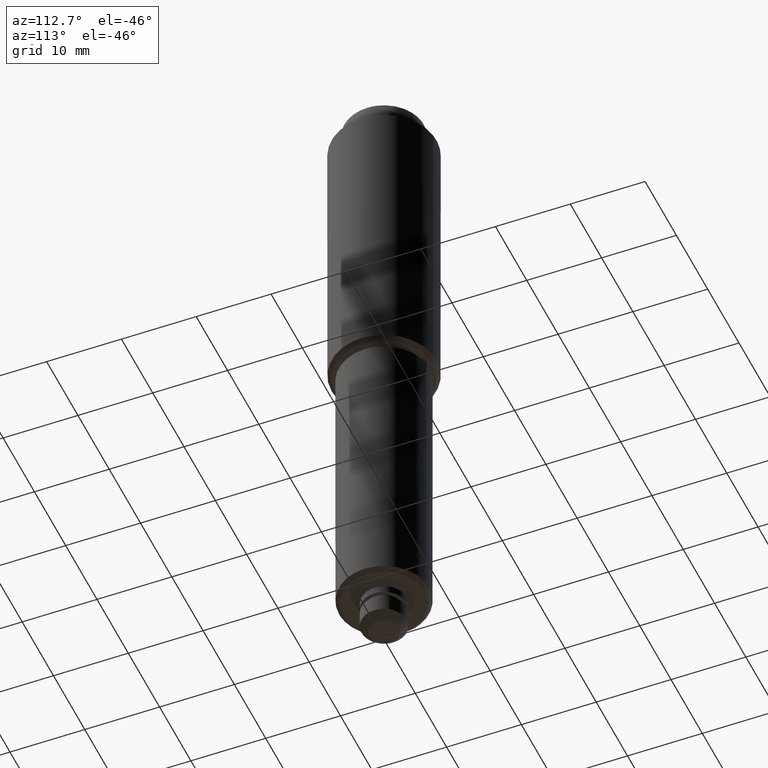
[diagram: clean part render]
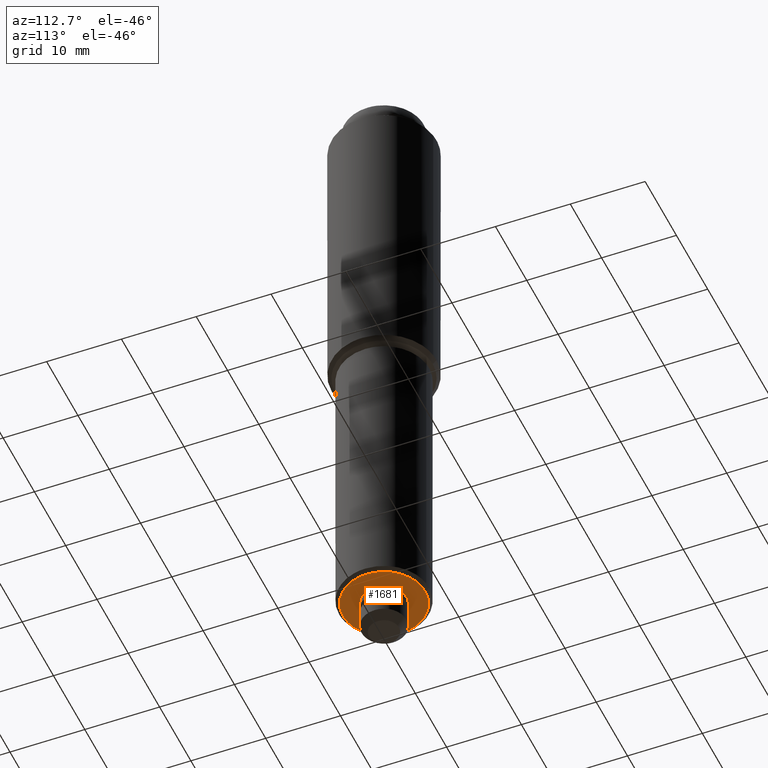
[diagram: same view with one face highlighted and labeled with its STEP entity id]
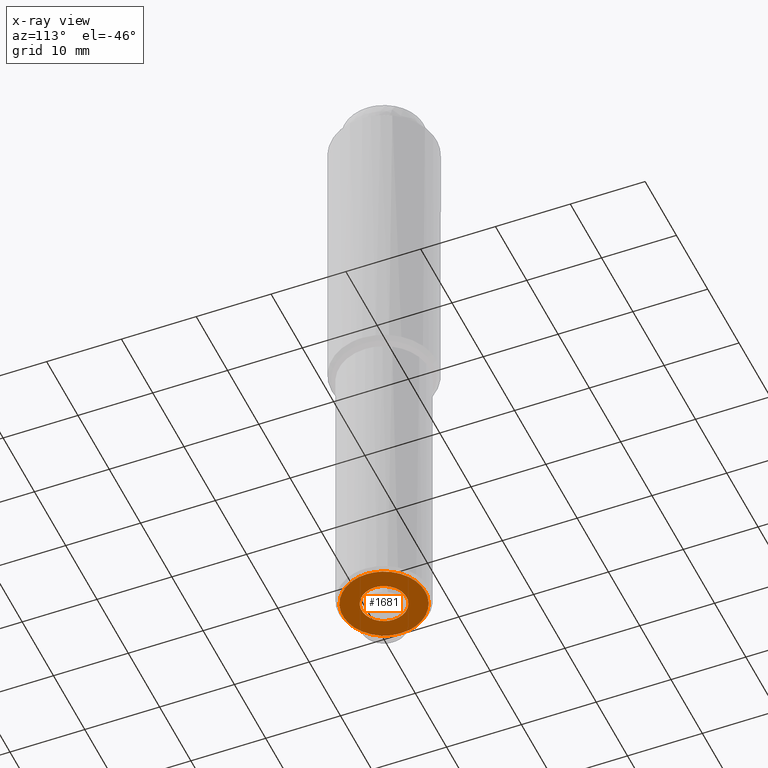
[diagram: x-ray of the same camera — body ghosted, the highlighted face saturated]
A machine part, auxiliary view. The second image highlights one B-rep face of the part: STEP entity #1681.
The next image is the same camera in x-ray: the body ghosted, the highlighted face saturated — about 0% of this face is hidden behind the body in this view.
In plain terms, the highlighted face is a freeform B-spline surface patch.
Its self-contained STEP definition (entity closure, byte-faithful):
#1236=CARTESIAN_POINT('',(-5.358199842454607,1.240844248333558,5.000000000027550));
#1237=VERTEX_POINT('',#1236);
#1243=CARTESIAN_POINT('',(-5.500000000000000,0.0,5.0));
#1244=VERTEX_POINT('',#1243);
#1245=CARTESIAN_POINT('',(-5.500000000000000,0.0,5.0));
#1246=CARTESIAN_POINT('',(-5.499999999999999,0.628524383983232,4.999999999999999));
#1247=CARTESIAN_POINT('',(-5.358199842454607,1.240844248333558,5.000000000027550));
#1255=(BOUNDED_CURVE()B_SPLINE_CURVE(2,(#1245,#1246,#1247),.UNSPECIFIED.,.F.,.U.)B_SPLINE_CURVE_WITH_KNOTS((3,3),(0.500000000000000,0.538577028229729),.UNSPECIFIED.)CURVE()GEOMETRIC_REPRESENTATION_ITEM()RATIONAL_B_SPLINE_CURVE((1.0,0.954804200118149,0.923556557419556))REPRESENTATION_ITEM(''));
#1256=EDGE_CURVE('',#1244,#1237,#1255,.T.);
#1258=CARTESIAN_POINT('',(5.500000000000000,0.0,5.0));
#1259=VERTEX_POINT('',#1258);
#1260=CARTESIAN_POINT('',(5.500000000000000,0.0,5.0));
#1261=CARTESIAN_POINT('',(5.500000000000001,-5.500000000000001,5.000000000000001));
#1262=CARTESIAN_POINT('',(0.0,-5.500000000000000,5.0));
#1263=CARTESIAN_POINT('',(-5.500000000000001,-5.500000000000001,5.000000000000001));
#1264=CARTESIAN_POINT('',(-5.500000000000000,0.0,5.0));
#1272=(BOUNDED_CURVE()B_SPLINE_CURVE(2,(#1260,#1261,#1262,#1263,#1264),.UNSPECIFIED.,.F.,.U.)B_SPLINE_CURVE_WITH_KNOTS((3,2,3),(0.0,0.250000000000000,0.500000000000000),.UNSPECIFIED.)CURVE()GEOMETRIC_REPRESENTATION_ITEM()RATIONAL_B_SPLINE_CURVE((1.0,0.707106781186548,1.0,0.707106781186548,1.0))REPRESENTATION_ITEM(''));
#1273=EDGE_CURVE('',#1259,#1244,#1272,.T.);
#1275=CARTESIAN_POINT('',(-0.047995945691069,5.499790576910344,5.000000000061327));
#1276=VERTEX_POINT('',#1275);
#1277=CARTESIAN_POINT('',(-0.047995945691069,5.499790576910344,5.000000000061327));
#1278=CARTESIAN_POINT('',(-0.023998429963362,5.499999999999999,5.0));
#1279=CARTESIAN_POINT('',(0.0,5.500000000000000,5.0));
#1280=CARTESIAN_POINT('',(5.500000000000001,5.500000000000001,5.000000000000001));
#1281=CARTESIAN_POINT('',(5.500000000000000,0.0,5.0));
#1289=(BOUNDED_CURVE()B_SPLINE_CURVE(2,(#1277,#1278,#1279,#1280,#1281),.UNSPECIFIED.,.F.,.U.)B_SPLINE_CURVE_WITH_KNOTS((3,2,3),(0.748460105636222,0.750000000000000,1.0),.UNSPECIFIED.)CURVE()GEOMETRIC_REPRESENTATION_ITEM()RATIONAL_B_SPLINE_CURVE((0.996414028033775,0.998195901532641,1.0,0.707106781186548,1.0))REPRESENTATION_ITEM(''));
#1290=EDGE_CURVE('',#1276,#1259,#1289,.T.);
#1392=CARTESIAN_POINT('',(-5.358199842454607,1.240844248333558,5.000000000027550));
#1393=CARTESIAN_POINT('',(-4.380675301435507,5.461979856223417,4.999999999999999));
#1394=CARTESIAN_POINT('',(-0.047995945691069,5.499790576910344,5.000000000061327));
#1402=(BOUNDED_CURVE()B_SPLINE_CURVE(2,(#1392,#1393,#1394),.UNSPECIFIED.,.F.,.U.)B_SPLINE_CURVE_WITH_KNOTS((3,3),(0.538577028229729,0.748460105636221),.UNSPECIFIED.)CURVE()GEOMETRIC_REPRESENTATION_ITEM()RATIONAL_B_SPLINE_CURVE((0.923556557419557,0.753549905475722,0.996414028033773))REPRESENTATION_ITEM(''));
#1403=EDGE_CURVE('',#1237,#1276,#1402,.T.);
#1500=CARTESIAN_POINT('',(0.354102703992168,-2.979028579088397,5.0));
#1501=VERTEX_POINT('',#1500);
#1502=CARTESIAN_POINT('',(-3.0,0.0,5.0));
#1503=VERTEX_POINT('',#1502);
#1504=CARTESIAN_POINT('',(0.354102703992168,-2.979028579088397,5.0));
#1505=CARTESIAN_POINT('',(0.177672358977854,-3.0,5.0));
#1506=CARTESIAN_POINT('',(0.0,-3.0,5.0));
#1507=CARTESIAN_POINT('',(-3.0,-3.0,5.000000000000001));
#1508=CARTESIAN_POINT('',(-3.0,0.0,5.0));
#1516=(BOUNDED_CURVE()B_SPLINE_CURVE(2,(#1504,#1505,#1506,#1507,#1508),.UNSPECIFIED.,.F.,.U.)B_SPLINE_CURVE_WITH_KNOTS((3,2,3),(0.229562473513160,0.250000000000000,0.500000000000000),.UNSPECIFIED.)CURVE()GEOMETRIC_REPRESENTATION_ITEM()RATIONAL_B_SPLINE_CURVE((0.956026754183017,0.976055948330737,1.0,0.707106781186548,1.0))REPRESENTATION_ITEM(''));
#1517=EDGE_CURVE('',#1501,#1503,#1516,.T.);
#1519=CARTESIAN_POINT('',(-0.183145618696712,2.994404395259965,5.0));
#1520=VERTEX_POINT('',#1519);
#1521=CARTESIAN_POINT('',(-3.0,0.0,5.0));
#1522=CARTESIAN_POINT('',(-3.000000000000001,2.822118200543074,4.999999999999999));
#1523=CARTESIAN_POINT('',(-0.183145618696712,2.994404395259965,5.0));
#1531=(BOUNDED_CURVE()B_SPLINE_CURVE(2,(#1521,#1522,#1523),.UNSPECIFIED.,.F.,.U.)B_SPLINE_CURVE_WITH_KNOTS((3,3),(0.500000000000000,0.739332962231349),.UNSPECIFIED.)CURVE()GEOMETRIC_REPRESENTATION_ITEM()RATIONAL_B_SPLINE_CURVE((1.0,0.719603993295607,0.976072041650442))REPRESENTATION_ITEM(''));
#1532=EDGE_CURVE('',#1503,#1520,#1531,.T.);
#1599=CARTESIAN_POINT('',(3.0,0.0,5.0));
#1600=VERTEX_POINT('',#1599);
#1601=CARTESIAN_POINT('',(3.0,0.0,5.0));
#1602=CARTESIAN_POINT('',(3.000000000000000,-2.664523577814664,5.0));
#1603=CARTESIAN_POINT('',(0.354102703992168,-2.979028579088397,5.0));
#1611=(BOUNDED_CURVE()B_SPLINE_CURVE(2,(#1601,#1602,#1603),.UNSPECIFIED.,.F.,.U.)B_SPLINE_CURVE_WITH_KNOTS((3,3),(0.0,0.229562473513160),.UNSPECIFIED.)CURVE()GEOMETRIC_REPRESENTATION_ITEM()RATIONAL_B_SPLINE_CURVE((1.0,0.731050832855810,0.956026754183017))REPRESENTATION_ITEM(''));
#1612=EDGE_CURVE('',#1600,#1501,#1611,.T.);
#1646=CARTESIAN_POINT('',(-0.183145618696712,2.994404395259965,5.0));
#1647=CARTESIAN_POINT('',(-0.091658289988166,3.0,5.0));
#1648=CARTESIAN_POINT('',(0.0,3.0,5.0));
#1649=CARTESIAN_POINT('',(3.0,3.0,5.000000000000001));
#1650=CARTESIAN_POINT('',(3.0,0.0,5.0));
#1658=(BOUNDED_CURVE()B_SPLINE_CURVE(2,(#1646,#1647,#1648,#1649,#1650),.UNSPECIFIED.,.F.,.U.)B_SPLINE_CURVE_WITH_KNOTS((3,2,3),(0.739332962231349,0.750000000000000,1.0),.UNSPECIFIED.)CURVE()GEOMETRIC_REPRESENTATION_ITEM()RATIONAL_B_SPLINE_CURVE((0.976072041650443,0.987502787890941,1.0,0.707106781186548,1.0))REPRESENTATION_ITEM(''));
#1659=EDGE_CURVE('',#1520,#1600,#1658,.T.);
#1664=CARTESIAN_POINT('',(-6.049449978679865,-6.049439524952551,5.0));
#1665=CARTESIAN_POINT('',(6.049450273722857,-6.049439524952551,5.0));
#1666=CARTESIAN_POINT('',(-6.049449978679865,6.049230536166806,5.0));
#1667=CARTESIAN_POINT('',(6.049450273722857,6.049230536166806,5.0));
#1668=B_SPLINE_SURFACE_WITH_KNOTS('',1,1,((#1664,#1666),(#1665,#1667)),.UNSPECIFIED.,.F.,.F.,.U.,(2,2),(2,2),(0.0,12.098900252402720),(0.0,12.098670061119360),.UNSPECIFIED.);
#1669=ORIENTED_EDGE('',*,*,#1273,.T.);
#1670=ORIENTED_EDGE('',*,*,#1256,.T.);
#1671=ORIENTED_EDGE('',*,*,#1403,.T.);
#1672=ORIENTED_EDGE('',*,*,#1290,.T.);
#1673=EDGE_LOOP('',(#1669,#1670,#1671,#1672));
#1674=FACE_OUTER_BOUND('',#1673,.T.);
#1675=ORIENTED_EDGE('',*,*,#1532,.F.);
#1676=ORIENTED_EDGE('',*,*,#1517,.F.);
#1677=ORIENTED_EDGE('',*,*,#1612,.F.);
#1678=ORIENTED_EDGE('',*,*,#1659,.F.);
#1679=EDGE_LOOP('',(#1675,#1676,#1677,#1678));
#1680=FACE_BOUND('',#1679,.T.);
#1681=ADVANCED_FACE('',(#1674,#1680),#1668,.F.);